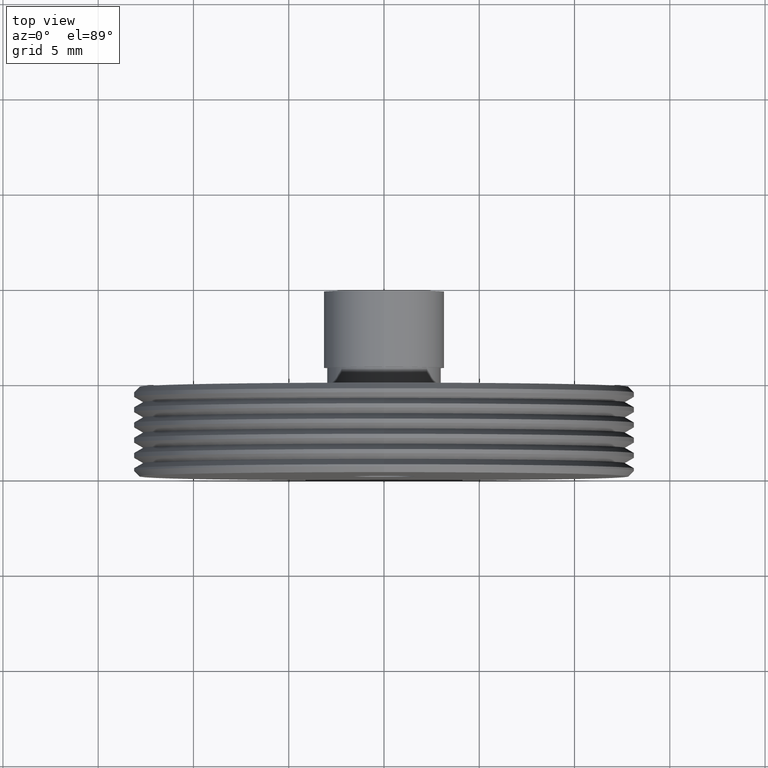
[diagram: clean part render]
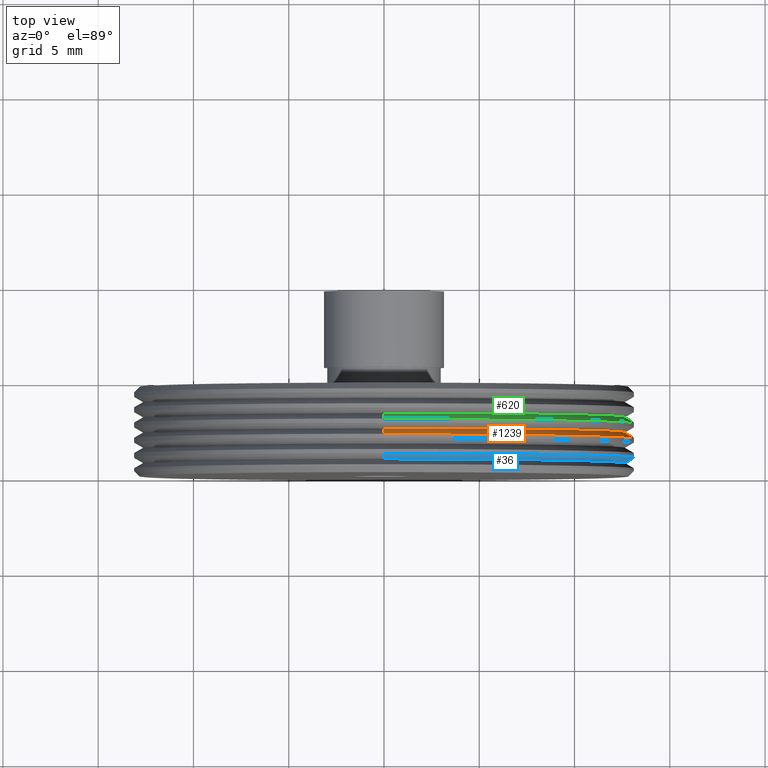
[diagram: same view with three faces highlighted in distinct colors, each labeled with its STEP entity id]
A machine part, top view with three faces highlighted in distinct colors.
Their STEP definitions:

[orange] entity #1239 — the highlighted conical surface has half-angle 60 deg.
#17 = VERTEX_POINT ( 'NONE', #949 ) ;
#32 = AXIS2_PLACEMENT_3D ( 'NONE', #398, #1083, #1176 ) ;
#74 = CIRCLE ( 'NONE', #259, 13.15000000000000568 ) ;
#145 = FACE_OUTER_BOUND ( 'NONE', #992, .T. ) ;
#154 = CIRCLE ( 'NONE', #32, 12.65000000000000036 ) ;
#191 = CARTESIAN_POINT ( 'NONE',  ( 0.000000000000000000, 2.299999999999999822, 12.65000000000000036 ) ) ;
#193 = VERTEX_POINT ( 'NONE', #191 ) ;
#218 = AXIS2_PLACEMENT_3D ( 'NONE', #444, #342, #1014 ) ;
#259 = AXIS2_PLACEMENT_3D ( 'NONE', #350, #650, #1146 ) ;
#342 = DIRECTION ( 'NONE',  ( 0.000000000000000000, -1.000000000000000000, 0.000000000000000000 ) ) ;
#350 = CARTESIAN_POINT ( 'NONE',  ( 0.000000000000000000, 2.011324865405184070, 0.000000000000000000 ) ) ;
#380 = ORIENTED_EDGE ( 'NONE', *, *, #403, .T. ) ;
#390 = EDGE_CURVE ( 'NONE', #718, #954, #455, .T. ) ;
#398 = CARTESIAN_POINT ( 'NONE',  ( 0.000000000000000000, 2.299999999999999822, 0.000000000000000000 ) ) ;
#403 = EDGE_CURVE ( 'NONE', #17, #954, #74, .T. ) ;
#427 = CARTESIAN_POINT ( 'NONE',  ( 1.579794370900085936E-15, 2.299999999999999822, -12.65000000000000036 ) ) ;
#444 = CARTESIAN_POINT ( 'NONE',  ( 0.000000000000000000, 2.299999999999999822, 0.000000000000000000 ) ) ;
#455 = LINE ( 'NONE', #947, #798 ) ;
#502 = CARTESIAN_POINT ( 'NONE',  ( 1.610410540878770117E-15, 2.011324865405184070, -13.15000000000000568 ) ) ;
#504 = EDGE_CURVE ( 'NONE', #193, #17, #583, .T. ) ;
#541 = DIRECTION ( 'NONE',  ( 0.000000000000000000, -0.4999999999999995004, -0.8660254037844389297 ) ) ;
#583 = LINE ( 'NONE', #773, #1127 ) ;
#650 = DIRECTION ( 'NONE',  ( -0.000000000000000000, 1.000000000000000000, -0.000000000000000000 ) ) ;
#718 = VERTEX_POINT ( 'NONE', #427 ) ;
#773 = CARTESIAN_POINT ( 'NONE',  ( 1.549178200921401754E-15, 2.299999999999999822, 12.65000000000000036 ) ) ;
#787 = DIRECTION ( 'NONE',  ( 1.060575238724907285E-16, -0.4999999999999995004, 0.8660254037844389297 ) ) ;
#798 = VECTOR ( 'NONE', #541, 1000.000000000000000 ) ;
#947 = CARTESIAN_POINT ( 'NONE',  ( 0.000000000000000000, 2.299999999999999822, -12.65000000000000036 ) ) ;
#949 = CARTESIAN_POINT ( 'NONE',  ( 0.000000000000000000, 2.011324865405184070, 13.15000000000000568 ) ) ;
#954 = VERTEX_POINT ( 'NONE', #502 ) ;
#992 = EDGE_LOOP ( 'NONE', ( #1164, #1201, #380, #1233 ) ) ;
#1014 = DIRECTION ( 'NONE',  ( 0.000000000000000000, 0.000000000000000000, -1.000000000000000000 ) ) ;
#1023 = CONICAL_SURFACE ( 'NONE', #218, 12.65000000000000036, 1.047197551196598297 ) ;
#1083 = DIRECTION ( 'NONE',  ( -0.000000000000000000, 1.000000000000000000, -0.000000000000000000 ) ) ;
#1089 = EDGE_CURVE ( 'NONE', #193, #718, #154, .T. ) ;
#1127 = VECTOR ( 'NONE', #787, 1000.000000000000000 ) ;
#1146 = DIRECTION ( 'NONE',  ( 0.000000000000000000, 0.000000000000000000, -1.000000000000000000 ) ) ;
#1164 = ORIENTED_EDGE ( 'NONE', *, *, #1089, .F. ) ;
#1176 = DIRECTION ( 'NONE',  ( 0.000000000000000000, 0.000000000000000000, 1.000000000000000000 ) ) ;
#1201 = ORIENTED_EDGE ( 'NONE', *, *, #504, .T. ) ;
#1233 = ORIENTED_EDGE ( 'NONE', *, *, #390, .F. ) ;
#1239 = ADVANCED_FACE ( 'NONE', ( #145 ), #1023, .T. ) ;

[blue] entity #36 — the highlighted conical surface has half-angle 60 deg.
#1 = EDGE_CURVE ( 'NONE', #984, #999, #733, .T. ) ;
#18 = CARTESIAN_POINT ( 'NONE',  ( 0.000000000000000000, 0.6999999999999992895, 0.000000000000000000 ) ) ;
#36 = ADVANCED_FACE ( 'NONE', ( #263 ), #521, .T. ) ;
#114 = AXIS2_PLACEMENT_3D ( 'NONE', #18, #598, #402 ) ;
#118 = EDGE_CURVE ( 'NONE', #662, #655, #391, .T. ) ;
#211 = AXIS2_PLACEMENT_3D ( 'NONE', #695, #340, #428 ) ;
#225 = ORIENTED_EDGE ( 'NONE', *, *, #118, .F. ) ;
#253 = EDGE_CURVE ( 'NONE', #999, #655, #936, .T. ) ;
#263 = FACE_OUTER_BOUND ( 'NONE', #1103, .T. ) ;
#340 = DIRECTION ( 'NONE',  ( 0.000000000000000000, -1.000000000000000000, 0.000000000000000000 ) ) ;
#388 = AXIS2_PLACEMENT_3D ( 'NONE', #635, #449, #1034 ) ;
#391 = LINE ( 'NONE', #793, #912 ) ;
#402 = DIRECTION ( 'NONE',  ( 0.000000000000000000, 0.000000000000000000, 1.000000000000000000 ) ) ;
#410 = CIRCLE ( 'NONE', #114, 12.65000000000000036 ) ;
#420 = ORIENTED_EDGE ( 'NONE', *, *, #1, .T. ) ;
#428 = DIRECTION ( 'NONE',  ( 0.000000000000000000, 0.000000000000000000, 1.000000000000000000 ) ) ;
#443 = ORIENTED_EDGE ( 'NONE', *, *, #253, .T. ) ;
#449 = DIRECTION ( 'NONE',  ( -0.000000000000000000, 1.000000000000000000, -0.000000000000000000 ) ) ;
#521 = CONICAL_SURFACE ( 'NONE', #388, 14.15000000000000391, 1.047197551196597853 ) ;
#598 = DIRECTION ( 'NONE',  ( -0.000000000000000000, 1.000000000000000000, -0.000000000000000000 ) ) ;
#635 = CARTESIAN_POINT ( 'NONE',  ( 0.000000000000000000, 1.566025403784440329, 0.000000000000000000 ) ) ;
#655 = VERTEX_POINT ( 'NONE', #1132 ) ;
#662 = VERTEX_POINT ( 'NONE', #1021 ) ;
#695 = CARTESIAN_POINT ( 'NONE',  ( 0.000000000000000000, 0.9886751345948151526, 0.000000000000000000 ) ) ;
#733 = LINE ( 'NONE', #1047, #768 ) ;
#768 = VECTOR ( 'NONE', #942, 1000.000000000000000 ) ;
#777 = CARTESIAN_POINT ( 'NONE',  ( 1.610410540878770117E-15, 0.9886751345948151526, -13.15000000000000568 ) ) ;
#793 = CARTESIAN_POINT ( 'NONE',  ( 0.000000000000000000, 1.566025403784440329, 14.15000000000000391 ) ) ;
#873 = DIRECTION ( 'NONE',  ( 0.000000000000000000, 0.4999999999999998890, 0.8660254037844387076 ) ) ;
#912 = VECTOR ( 'NONE', #873, 1000.000000000000000 ) ;
#936 = CIRCLE ( 'NONE', #211, 13.15000000000000568 ) ;
#942 = DIRECTION ( 'NONE',  ( 1.060575238724906915E-16, 0.4999999999999998890, -0.8660254037844387076 ) ) ;
#974 = CARTESIAN_POINT ( 'NONE',  ( 1.579794370900085936E-15, 0.6999999999999992895, -12.65000000000000036 ) ) ;
#984 = VERTEX_POINT ( 'NONE', #974 ) ;
#999 = VERTEX_POINT ( 'NONE', #777 ) ;
#1018 = ORIENTED_EDGE ( 'NONE', *, *, #1079, .T. ) ;
#1021 = CARTESIAN_POINT ( 'NONE',  ( 0.000000000000000000, 0.6999999999999992895, 12.65000000000000036 ) ) ;
#1034 = DIRECTION ( 'NONE',  ( 0.000000000000000000, 0.000000000000000000, 1.000000000000000000 ) ) ;
#1047 = CARTESIAN_POINT ( 'NONE',  ( 1.732875220793505462E-15, 1.566025403784440329, -14.15000000000000391 ) ) ;
#1079 = EDGE_CURVE ( 'NONE', #662, #984, #410, .T. ) ;
#1103 = EDGE_LOOP ( 'NONE', ( #1018, #420, #443, #225 ) ) ;
#1132 = CARTESIAN_POINT ( 'NONE',  ( 0.000000000000000000, 0.9886751345948151526, 13.15000000000000568 ) ) ;

[green] entity #620 — the highlighted conical surface has half-angle 60 deg.
#13 = VECTOR ( 'NONE', #795, 1000.000000000000000 ) ;
#19 = DIRECTION ( 'NONE',  ( 0.000000000000000000, 0.000000000000000000, -1.000000000000000000 ) ) ;
#48 = CARTESIAN_POINT ( 'NONE',  ( 0.000000000000000000, 3.100000000000000533, 0.000000000000000000 ) ) ;
#81 = VERTEX_POINT ( 'NONE', #396 ) ;
#93 = DIRECTION ( 'NONE',  ( -0.000000000000000000, 1.000000000000000000, -0.000000000000000000 ) ) ;
#94 = EDGE_CURVE ( 'NONE', #81, #776, #477, .T. ) ;
#229 = EDGE_LOOP ( 'NONE', ( #257, #1153, #1214, #408 ) ) ;
#257 = ORIENTED_EDGE ( 'NONE', *, *, #1162, .F. ) ;
#309 = DIRECTION ( 'NONE',  ( 1.060575238724907285E-16, -0.4999999999999995004, 0.8660254037844389297 ) ) ;
#313 = AXIS2_PLACEMENT_3D ( 'NONE', #677, #492, #19 ) ;
#395 = CIRCLE ( 'NONE', #1230, 12.65000000000000036 ) ;
#396 = CARTESIAN_POINT ( 'NONE',  ( 0.000000000000000000, 3.100000000000000533, 12.65000000000000036 ) ) ;
#408 = ORIENTED_EDGE ( 'NONE', *, *, #948, .F. ) ;
#454 = LINE ( 'NONE', #844, #13 ) ;
#477 = LINE ( 'NONE', #683, #744 ) ;
#480 = CARTESIAN_POINT ( 'NONE',  ( 0.000000000000000000, 2.811324865405184781, 0.000000000000000000 ) ) ;
#492 = DIRECTION ( 'NONE',  ( 0.000000000000000000, -1.000000000000000000, 0.000000000000000000 ) ) ;
#499 = CARTESIAN_POINT ( 'NONE',  ( 0.000000000000000000, 2.811324865405184781, 13.15000000000000568 ) ) ;
#620 = ADVANCED_FACE ( 'NONE', ( #682 ), #858, .T. ) ;
#677 = CARTESIAN_POINT ( 'NONE',  ( 0.000000000000000000, 3.100000000000000533, 0.000000000000000000 ) ) ;
#682 = FACE_OUTER_BOUND ( 'NONE', #229, .T. ) ;
#683 = CARTESIAN_POINT ( 'NONE',  ( 1.549178200921401754E-15, 3.100000000000000533, 12.65000000000000036 ) ) ;
#694 = CIRCLE ( 'NONE', #864, 13.15000000000000568 ) ;
#744 = VECTOR ( 'NONE', #309, 1000.000000000000000 ) ;
#771 = CARTESIAN_POINT ( 'NONE',  ( 1.610410540878770117E-15, 2.811324865405184781, -13.15000000000000568 ) ) ;
#776 = VERTEX_POINT ( 'NONE', #499 ) ;
#795 = DIRECTION ( 'NONE',  ( 0.000000000000000000, -0.4999999999999995004, -0.8660254037844389297 ) ) ;
#813 = EDGE_CURVE ( 'NONE', #776, #898, #694, .T. ) ;
#834 = DIRECTION ( 'NONE',  ( -0.000000000000000000, 1.000000000000000000, -0.000000000000000000 ) ) ;
#843 = VERTEX_POINT ( 'NONE', #1056 ) ;
#844 = CARTESIAN_POINT ( 'NONE',  ( 0.000000000000000000, 3.100000000000000533, -12.65000000000000036 ) ) ;
#858 = CONICAL_SURFACE ( 'NONE', #313, 12.65000000000000036, 1.047197551196598297 ) ;
#864 = AXIS2_PLACEMENT_3D ( 'NONE', #480, #93, #1043 ) ;
#898 = VERTEX_POINT ( 'NONE', #771 ) ;
#948 = EDGE_CURVE ( 'NONE', #843, #898, #454, .T. ) ;
#1043 = DIRECTION ( 'NONE',  ( 0.000000000000000000, 0.000000000000000000, -1.000000000000000000 ) ) ;
#1056 = CARTESIAN_POINT ( 'NONE',  ( 1.579794370900085936E-15, 3.100000000000000533, -12.65000000000000036 ) ) ;
#1153 = ORIENTED_EDGE ( 'NONE', *, *, #94, .T. ) ;
#1162 = EDGE_CURVE ( 'NONE', #81, #843, #395, .T. ) ;
#1207 = DIRECTION ( 'NONE',  ( 0.000000000000000000, 0.000000000000000000, 1.000000000000000000 ) ) ;
#1214 = ORIENTED_EDGE ( 'NONE', *, *, #813, .T. ) ;
#1230 = AXIS2_PLACEMENT_3D ( 'NONE', #48, #834, #1207 ) ;